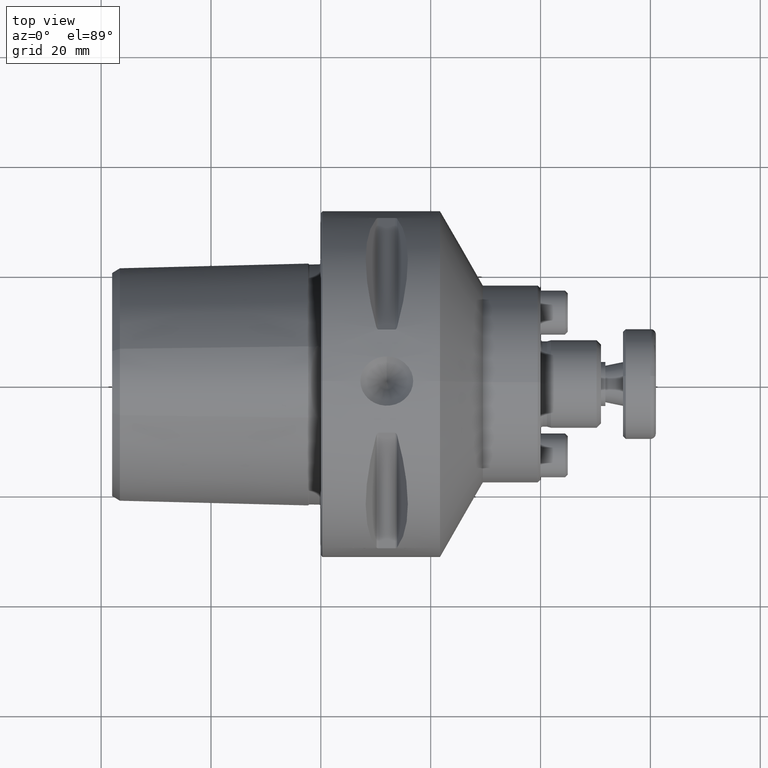
[diagram: clean part render]
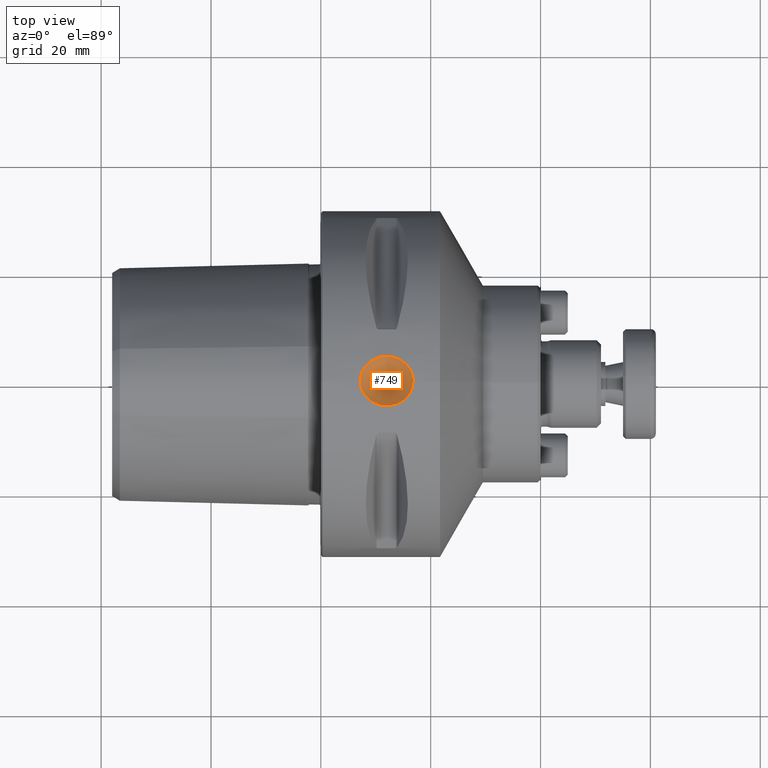
[diagram: same view with one face highlighted and labeled with its STEP entity id]
A machine part, top view. The second image highlights one B-rep face of the part: STEP entity #749.
In plain terms, the highlighted conical surface has half-angle 45 deg.
Its self-contained STEP definition (entity closure, byte-faithful):
#749 = ADVANCED_FACE( '', ( #1519, #1520 ), #1521, .F. );
#1519 = FACE_OUTER_BOUND( '', #2253, .T. );
#1520 = FACE_BOUND( '', #2254, .T. );
#1521 = CONICAL_SURFACE( '', #2255, 4.81000000000000, 0.785398163397448 );
#2253 = EDGE_LOOP( '', ( #3821 ) );
#2254 = VERTEX_LOOP( '', #3822 );
#2255 = AXIS2_PLACEMENT_3D( '', #3823, #3824, #3825 );
#3821 = ORIENTED_EDGE( '', *, *, #4240, .T. );
#3822 = VERTEX_POINT( '', #4437 );
#3823 = CARTESIAN_POINT( '', ( 12.0000000000000, 0.000000000000000, 31.5000000000000 ) );
#3824 = DIRECTION( '', ( -0.000000000000000, -0.000000000000000, 1.00000000000000 ) );
#3825 = DIRECTION( '', ( 0.000000000000000, 1.00000000000000, 0.000000000000000 ) );
#4240 = EDGE_CURVE( '', #5052, #5052, #5053, .F. );
#4437 = CARTESIAN_POINT( '', ( 12.0000000000000, 0.000000000000000, 26.6900000000000 ) );
#5052 = VERTEX_POINT( '', #6468 );
#5053 = B_SPLINE_CURVE_WITH_KNOTS( '', 3, ( #6469, #6470, #6471, #6472, #6473, #6474, #6475, #6476, #6477, #6478, #6479, #6480, #6481, #6482, #6483, #6484, #6485, #6486, #6487, #6488, #6489, #6490, #6491, #6492, #6493, #6494, #6495, #6496, #6497, #6498, #6499, #6500, #6501, #6502, #6503, #6504, #6505, #6506, #6507, #6508, #6509, #6510, #6511, #6512, #6513, #6514, #6515, #6516, #6517, #6518, #6519, #6520, #6521, #6522, #6523, #6524, #6525, #6526, #6527, #6528, #6529, #6530, #6531, #6532, #6533, #6534, #6535, #6536, #6537, #6538 ), .UNSPECIFIED., .T., .F., ( 2, 2, 2, 2, 2, 2, 2, 2, 2, 2, 2, 2, 2, 2, 2, 2, 2, 2, 2, 2, 2, 2, 2, 2, 2, 2, 2, 2, 2, 2, 2, 2, 2, 2, 2, 2, 2 ), ( -0.000911095599910649, 0.000000000000000, 0.000911095599910650, 0.00182219119982130, 0.00273328679973195, 0.00318883459968728, 0.00364438239964260, 0.00455547799955325, 0.00546657359946390, 0.00637766919937455, 0.00728876479928520, 0.00819986039919585, 0.00911095599910650, 0.0100220515990171, 0.0109331471989278, 0.0118442427988384, 0.0127553383987491, 0.0136664339986597, 0.0145775295985704, 0.0154886251984810, 0.0163997207983917, 0.0173108163983023, 0.0182219119982130, 0.0186774597981683, 0.0191330075981236, 0.0200441031980343, 0.0209551987979449, 0.0218662943978556, 0.0227773899977662, 0.0236884855976769, 0.0245995811975875, 0.0255106767974982, 0.0264217723974088, 0.0273328679973195, 0.0282439635972301, 0.0291550591971408, 0.0300661547970514 ), .UNSPECIFIED. );
#6468 = CARTESIAN_POINT( '', ( 8.10635435873101, -2.63211129999641, 31.3898389627031 ) );
#6469 = CARTESIAN_POINT( '', ( 8.29464946806317, -2.87437999268500, 31.3695241670643 ) );
#6470 = CARTESIAN_POINT( '', ( 7.91805924939886, -2.38984260730781, 31.4101537583419 ) );
#6471 = CARTESIAN_POINT( '', ( 7.75711019777702, -2.13242482657826, 31.4289263211342 ) );
#6472 = CARTESIAN_POINT( '', ( 7.49026310256222, -1.58695194015373, 31.4611860691859 ) );
#6473 = CARTESIAN_POINT( '', ( 7.38404019915011, -1.29560734365692, 31.4747263178733 ) );
#6474 = CARTESIAN_POINT( '', ( 7.23901891166467, -0.706006265715912, 31.4934683756288 ) );
#6475 = CARTESIAN_POINT( '', ( 7.19851079630303, -0.405733845300824, 31.4988728223896 ) );
#6476 = CARTESIAN_POINT( '', ( 7.18753424777033, 0.0531977551172297, 31.5003265420761 ) );
#6477 = CARTESIAN_POINT( '', ( 7.19238098150179, 0.207477737712824, 31.4996823822952 ) );
#6478 = CARTESIAN_POINT( '', ( 7.21859668272150, 0.511018184738415, 31.4962203702602 ) );
#6479 = CARTESIAN_POINT( '', ( 7.23991206790512, 0.661281627382363, 31.4934097699456 ) );
#6480 = CARTESIAN_POINT( '', ( 7.32799494294589, 1.10764370502468, 31.4819271128118 ) );
#6481 = CARTESIAN_POINT( '', ( 7.42029991592783, 1.40263836207484, 31.4700007475556 ) );
#6482 = CARTESIAN_POINT( '', ( 7.66316177856092, 1.96163038888354, 31.4401073096662 ) );
#6483 = CARTESIAN_POINT( '', ( 7.81256586788777, 2.22541201127120, 31.4222813526983 ) );
#6484 = CARTESIAN_POINT( '', ( 8.16538373736693, 2.72276569905561, 31.3830968990648 ) );
#6485 = CARTESIAN_POINT( '', ( 8.36807895323462, 2.95411711942292, 31.3618662195327 ) );
#6486 = CARTESIAN_POINT( '', ( 8.80961870466377, 3.36895651270016, 31.3200190412246 ) );
#6487 = CARTESIAN_POINT( '', ( 9.05199910626577, 3.55607667804578, 31.2990614647810 ) );
#6488 = CARTESIAN_POINT( '', ( 9.56877322247964, 3.88198791735171, 31.2603118942505 ) );
#6489 = CARTESIAN_POINT( '', ( 9.83924192760309, 4.01881415170162, 31.2427894647710 ) );
#6490 = CARTESIAN_POINT( '', ( 10.4032592472412, 4.24278988486424, 31.2131622031286 ) );
#6491 = CARTESIAN_POINT( '', ( 10.6997197829220, 4.33023071294370, 31.2010049922886 ) );
#6492 = CARTESIAN_POINT( '', ( 11.2963446550496, 4.44923387608647, 31.1842577027580 ) );
#6493 = CARTESIAN_POINT( '', ( 11.5976334258055, 4.48181079500671, 31.1795350592487 ) );
#6494 = CARTESIAN_POINT( '', ( 12.2061355272056, 4.49344052831350, 31.1778611635190 ) );
#6495 = CARTESIAN_POINT( '', ( 12.5146667244116, 4.47172997825294, 31.1810198552209 ) );
#6496 = CARTESIAN_POINT( '', ( 13.1137216155550, 4.37536592823234, 31.1946877080722 ) );
#6497 = CARTESIAN_POINT( '', ( 13.4072274969412, 4.30103805060461, 31.2051519396487 ) );
#6498 = CARTESIAN_POINT( '', ( 13.9818774108875, 4.09854972407172, 31.2323922562557 ) );
#6499 = CARTESIAN_POINT( '', ( 14.2619028325215, 3.97002694883122, 31.2491924621651 ) );
#6500 = CARTESIAN_POINT( '', ( 14.7858087174884, 3.66801152221028, 31.2860805308817 ) );
#6501 = CARTESIAN_POINT( '', ( 15.0327940325640, 3.49359456695820, 31.3063094228504 ) );
#6502 = CARTESIAN_POINT( '', ( 15.4949491162349, 3.09473167841080, 31.3482511237258 ) );
#6503 = CARTESIAN_POINT( '', ( 15.7061373788878, 2.87300062391422, 31.3696194618504 ) );
#6504 = CARTESIAN_POINT( '', ( 16.0770311922021, 2.39652237762005, 31.4096137871811 ) );
#6505 = CARTESIAN_POINT( '', ( 16.2391729261089, 2.13927526636225, 31.4284844050818 ) );
#6506 = CARTESIAN_POINT( '', ( 16.5093855248776, 1.58840639062822, 31.4611362764276 ) );
#6507 = CARTESIAN_POINT( '', ( 16.6132946106366, 1.30366313558022, 31.4743861981960 ) );
#6508 = CARTESIAN_POINT( '', ( 16.7592686486367, 0.715665752203608, 31.4932428729622 ) );
#6509 = CARTESIAN_POINT( '', ( 16.8011349908808, 0.408276991448462, 31.4988259306348 ) );
#6510 = CARTESIAN_POINT( '', ( 16.8162840733286, -0.200735664844491, 31.5008322160389 ) );
#6511 = CARTESIAN_POINT( '', ( 16.7907845827808, -0.503024780668964, 31.4974136124611 ) );
#6512 = CARTESIAN_POINT( '', ( 16.7027545275149, -0.953123872946345, 31.4859346285595 ) );
#6513 = CARTESIAN_POINT( '', ( 16.6648463338197, -1.10287922840994, 31.4810242755897 ) );
#6514 = CARTESIAN_POINT( '', ( 16.5741826901301, -1.39407455794103, 31.4694739098007 ) );
#6515 = CARTESIAN_POINT( '', ( 16.5212934512602, -1.53643605954308, 31.4628162056607 ) );
#6516 = CARTESIAN_POINT( '', ( 16.3406354937256, -1.95411910247216, 31.4405657703283 ) );
#6517 = CARTESIAN_POINT( '', ( 16.1890530961815, -2.22275215863541, 31.4224700045445 ) );
#6518 = CARTESIAN_POINT( '', ( 15.8366970057111, -2.72020627516012, 31.3833192343607 ) );
#6519 = CARTESIAN_POINT( '', ( 15.6373184020223, -2.94848237374371, 31.3624055401826 ) );
#6520 = CARTESIAN_POINT( '', ( 15.1940802582158, -3.36603355901806, 31.3203423936380 ) );
#6521 = CARTESIAN_POINT( '', ( 14.9500481425775, -3.55441563975046, 31.2992449059901 ) );
#6522 = CARTESIAN_POINT( '', ( 14.4375861400925, -3.87834118516380, 31.2607592978276 ) );
#6523 = CARTESIAN_POINT( '', ( 14.1669263773925, -4.01615670234809, 31.2431366886537 ) );
#6524 = CARTESIAN_POINT( '', ( 13.5963948971542, -4.24313308227078, 31.2131210623010 ) );
#6525 = CARTESIAN_POINT( '', ( 13.3048643191808, -4.32896782444364, 31.2011805205551 ) );
#6526 = CARTESIAN_POINT( '', ( 12.7102344189151, -4.44826366902586, 31.1843963967905 ) );
#6527 = CARTESIAN_POINT( '', ( 12.4044965968783, -4.48172645548203, 31.1795471957337 ) );
#6528 = CARTESIAN_POINT( '', ( 11.7931977232860, -4.49349679734876, 31.1778530672811 ) );
#6529 = CARTESIAN_POINT( '', ( 11.4906463401405, -4.47225745910451, 31.1809436910520 ) );
#6530 = CARTESIAN_POINT( '', ( 10.8916183608209, -4.37654632919029, 31.1945216099481 ) );
#6531 = CARTESIAN_POINT( '', ( 10.5921318106164, -4.30084116194975, 31.2051789198814 ) );
#6532 = CARTESIAN_POINT( '', ( 10.0179144924912, -4.09844748378837, 31.2324055164625 ) );
#6533 = CARTESIAN_POINT( '', ( 9.74293319626818, -3.97247683773518, 31.2488816693423 ) );
#6534 = CARTESIAN_POINT( '', ( 9.21748061025245, -3.67024046121697, 31.2858196754975 ) );
#6535 = CARTESIAN_POINT( '', ( 8.96510790034957, -3.49192068574856, 31.3064921727403 ) );
#6536 = CARTESIAN_POINT( '', ( 8.50471054775926, -3.09430036949356, 31.3482897055129 ) );
#6537 = CARTESIAN_POINT( '', ( 8.29464946806317, -2.87437999268500, 31.3695241670643 ) );
#6538 = CARTESIAN_POINT( '', ( 7.91805924939886, -2.38984260730781, 31.4101537583419 ) );